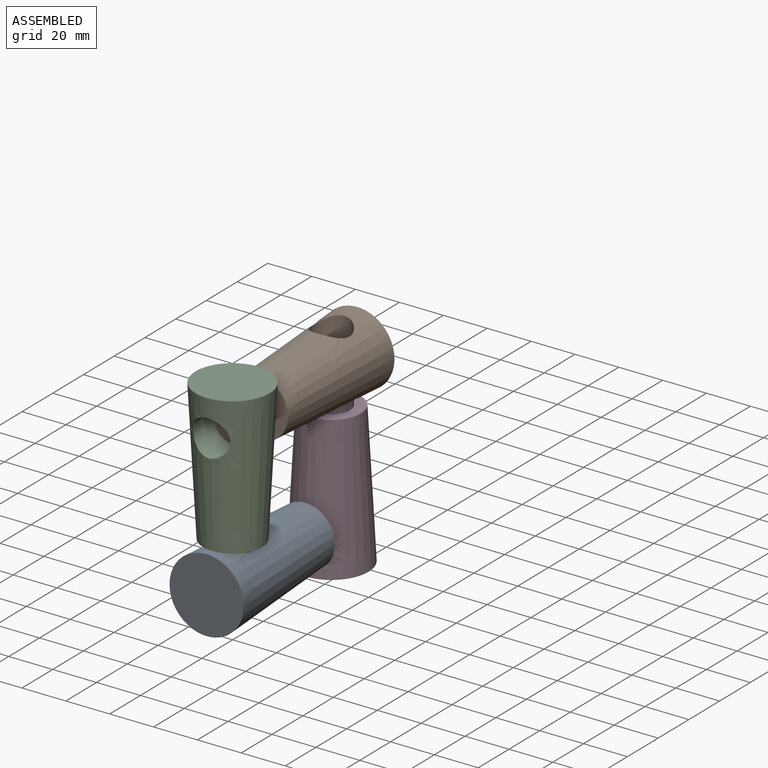
[diagram: assembled view]
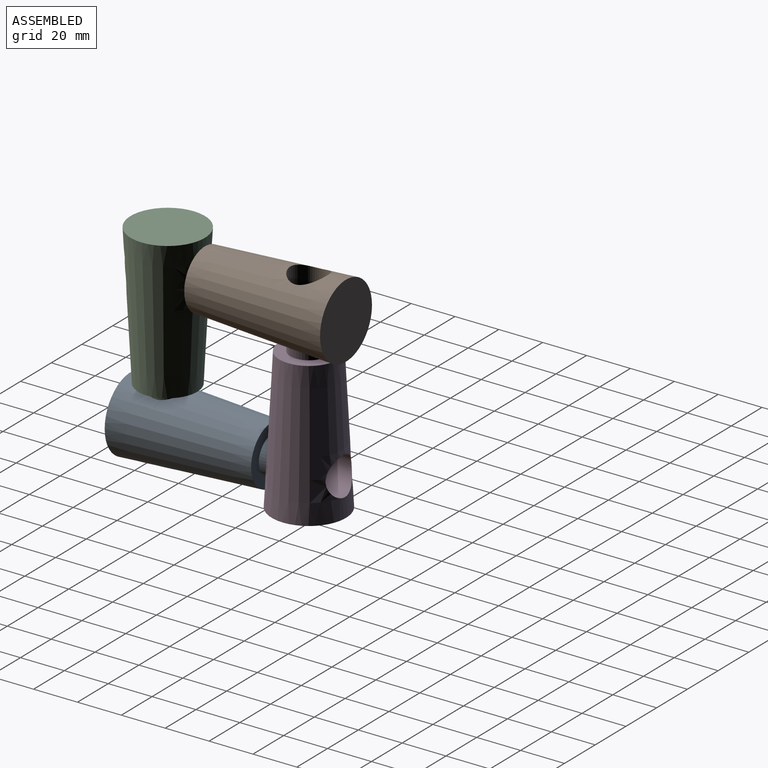
[diagram: assembled view, second angle]
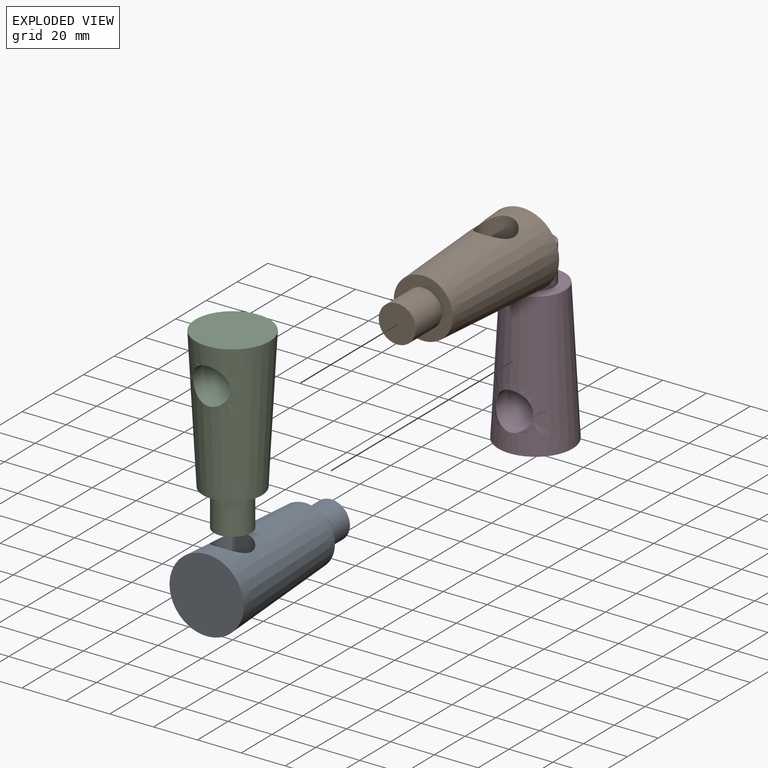
[diagram: exploded view]
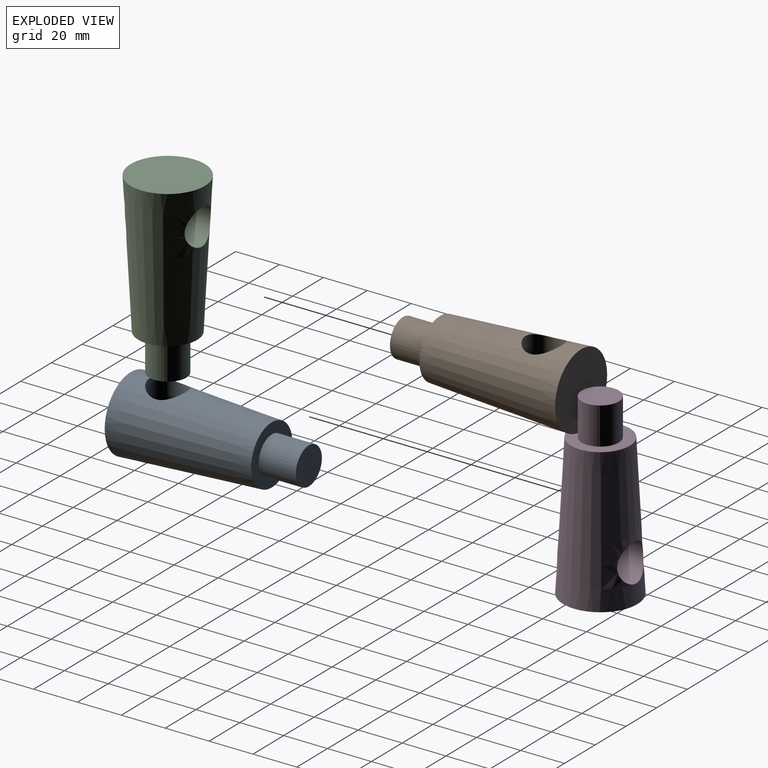
[diagram: exploded view, second angle]
ASSEMBLY  parts=4 mates=3
PART A: 6 faces, bbox 33.8x33.8x81.3 mm
  f0: cone r=13.45mm half-angle=3.1deg, axis (0,0,1), area 5680.2mm2, adj f1,f2,f5
  f1: plane 26.91x26.91mm, normal (0,0,-1), area 343.9mm2, adj f0,f4
  f2: plane 33.83x33.83mm, normal (0,0,1), area 899mm2, adj f0
  f3: plane 16.92x16.92mm, normal (0,0,-1), area 224.8mm2, adj f4
  f4: cylinder r=8.46mm len=16.92mm, axis (0,0,1), area 899mm2, adj f1,f3
  f5: cylinder r=8.46mm len=32.92mm, axis (0,1,0), area 1575.3mm2, adj f0
PART B: same geometry as A
PART C: same geometry as A
PART D: same geometry as A
PLACE A rot(axis=(1,0,0),90deg) t=(132.9,-25.5,55.2)mm
PLACE B rot(axis=(-1,0,0),90deg) t=(132.9,-89.83,119.53)mm
PLACE C t=(132.9,-89.83,55.2)mm
PLACE D rot(axis=(0,1,0),180deg) t=(132.9,-25.5,119.53)mm
MATE fastened D.f5 <-> A.f0  axis (0,1,0) through (132.9,-25.5,55.2)mm
MATE fastened C.f0 <-> A.f5  axis (0,0,-1) through (132.9,-89.83,55.2)mm
MATE fastened C.f5 <-> B.f0  axis (0,1,0) through (132.9,-89.83,119.53)mm
